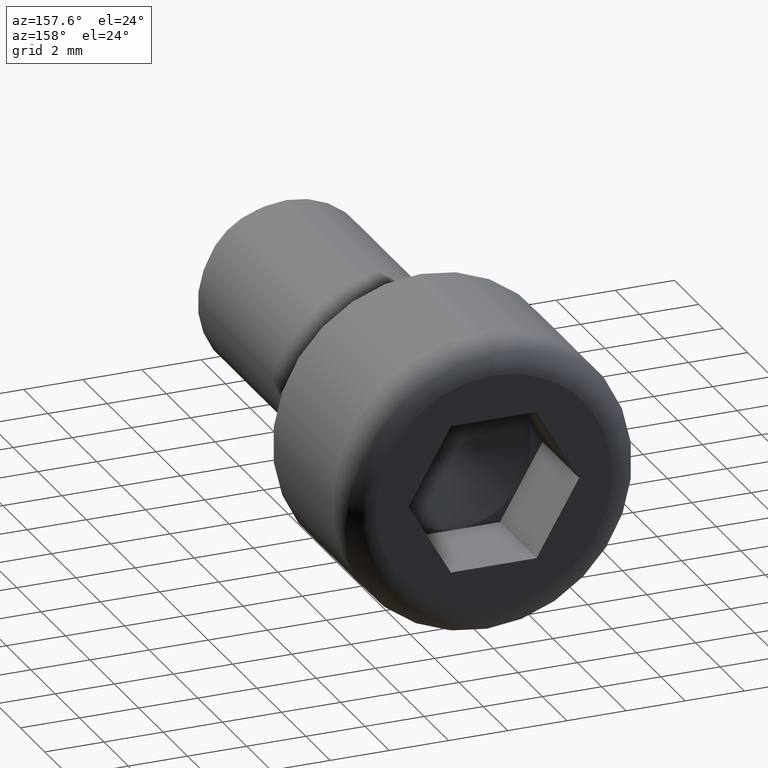
[diagram: clean part render]
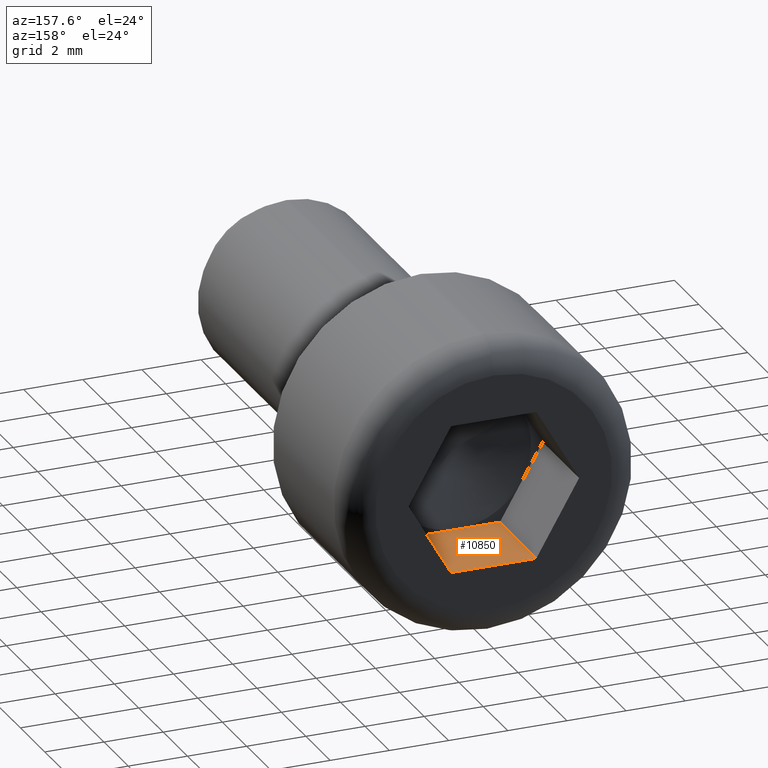
[diagram: same view with one face highlighted and labeled with its STEP entity id]
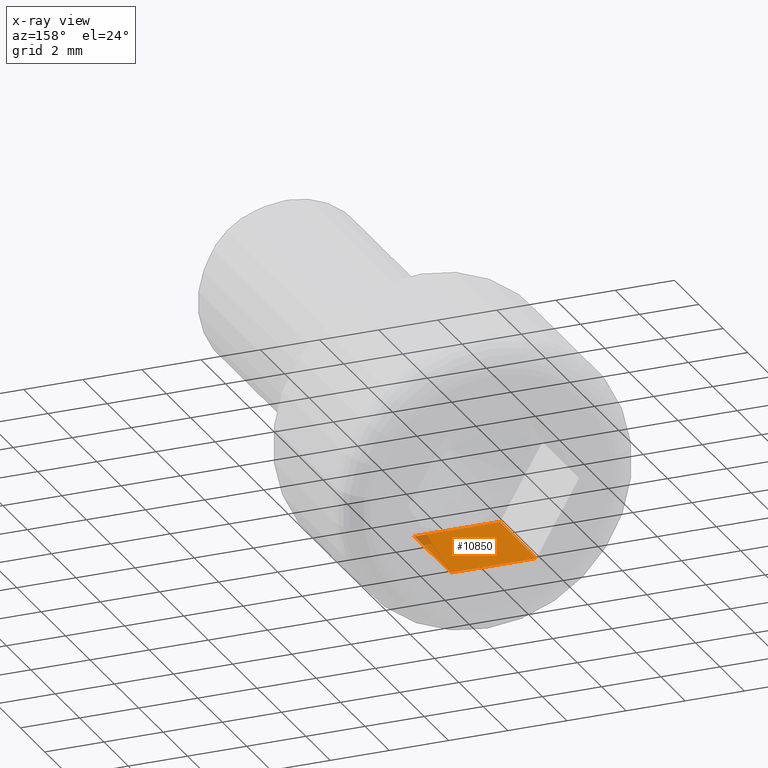
[diagram: x-ray of the same camera — body ghosted, the highlighted face saturated]
A machine part, auxiliary view. The second image highlights one B-rep face of the part: STEP entity #10850.
The next image is the same camera in x-ray: the body ghosted, the highlighted face saturated — about 3% of this face is hidden behind the body in this view.
In plain terms, the highlighted planar face has unit normal (-0, 0, -1).
Its self-contained STEP definition (entity closure, byte-faithful):
#1114 = EDGE_CURVE ( 'NONE', #8472, #5457, #16289, .T. ) ;
#1213 = DIRECTION ( 'NONE',  ( -1.000000000000000000, 0.0000000000000000000, 1.502314598737159300E-016 ) ) ;
#1711 = EDGE_CURVE ( 'NONE', #11637, #12968, #13912, .T. ) ;
#2458 = ORIENTED_EDGE ( 'NONE', *, *, #14626, .T. ) ;
#2777 = DIRECTION ( 'NONE',  ( -0.0000000000000000000, 1.000000000000000000, -0.0000000000000000000 ) ) ;
#4101 = CARTESIAN_POINT ( 'NONE',  ( 1.443375672974064300, 3.000000000000000000, -2.500000000000000400 ) ) ;
#4182 = CARTESIAN_POINT ( 'NONE',  ( 1.443375672974064300, 3.000000000000000000, -2.500000000000000400 ) ) ;
#4589 = DIRECTION ( 'NONE',  ( -1.000000000000000000, 0.0000000000000000000, 1.502314598737159300E-016 ) ) ;
#5144 = CARTESIAN_POINT ( 'NONE',  ( 1.443375672974064300, 6.000000000000000000, -2.500000000000000400 ) ) ;
#5303 = VECTOR ( 'NONE', #1213, 1000.000000000000000 ) ;
#5386 = VECTOR ( 'NONE', #4589, 1000.000000000000000 ) ;
#5457 = VERTEX_POINT ( 'NONE', #6193 ) ;
#5476 = EDGE_CURVE ( 'NONE', #5457, #12968, #9180, .T. ) ;
#6193 = CARTESIAN_POINT ( 'NONE',  ( -1.443375672974064800, 3.000000000000000000, -2.500000000000000000 ) ) ;
#6646 = VERTEX_POINT ( 'NONE', #16818 ) ;
#7089 = EDGE_CURVE ( 'NONE', #6646, #8472, #17078, .T. ) ;
#7153 = DIRECTION ( 'NONE',  ( -1.000000000000000000, 0.0000000000000000000, 1.502314598737159300E-016 ) ) ;
#7461 = DIRECTION ( 'NONE',  ( -1.000000000000000000, 0.0000000000000000000, 1.502314598737159000E-016 ) ) ;
#7518 = CARTESIAN_POINT ( 'NONE',  ( 1.443375672974064300, 3.000000000000000000, -2.500000000000000400 ) ) ;
#8049 = ORIENTED_EDGE ( 'NONE', *, *, #5476, .F. ) ;
#8472 = VERTEX_POINT ( 'NONE', #15403 ) ;
#8667 = CARTESIAN_POINT ( 'NONE',  ( 1.443375672974064300, 3.000000000000000000, -2.500000000000000400 ) ) ;
#8892 = DIRECTION ( 'NONE',  ( -1.502314598737159000E-016, 0.0000000000000000000, -1.000000000000000000 ) ) ;
#9180 = LINE ( 'NONE', #14466, #12374 ) ;
#9678 = VECTOR ( 'NONE', #2777, 1000.000000000000000 ) ;
#10364 = ORIENTED_EDGE ( 'NONE', *, *, #1711, .T. ) ;
#10412 = DIRECTION ( 'NONE',  ( -0.0000000000000000000, 1.000000000000000000, -0.0000000000000000000 ) ) ;
#10451 = ORIENTED_EDGE ( 'NONE', *, *, #7089, .F. ) ;
#10649 = ORIENTED_EDGE ( 'NONE', *, *, #1114, .F. ) ;
#10850 = ADVANCED_FACE ( 'NONE', ( #13582 ), #12955, .F. ) ;
#11637 = VERTEX_POINT ( 'NONE', #5144 ) ;
#12374 = VECTOR ( 'NONE', #10412, 1000.000000000000000 ) ;
#12541 = AXIS2_PLACEMENT_3D ( 'NONE', #7518, #8892, #7461 ) ;
#12955 = PLANE ( 'NONE',  #12541 ) ;
#12968 = VERTEX_POINT ( 'NONE', #13225 ) ;
#13225 = CARTESIAN_POINT ( 'NONE',  ( -1.443375672974064800, 6.000000000000000000, -2.500000000000000000 ) ) ;
#13582 = FACE_OUTER_BOUND ( 'NONE', #14643, .T. ) ;
#13912 = LINE ( 'NONE', #15422, #16694 ) ;
#14466 = CARTESIAN_POINT ( 'NONE',  ( -1.443375672974064800, 3.000000000000000000, -2.500000000000000000 ) ) ;
#14626 = EDGE_CURVE ( 'NONE', #6646, #11637, #16979, .T. ) ;
#14643 = EDGE_LOOP ( 'NONE', ( #10364, #8049, #10649, #10451, #2458 ) ) ;
#15403 = CARTESIAN_POINT ( 'NONE',  ( -4.108595537155047100E-016, 2.999999999999999600, -2.500000000000000000 ) ) ;
#15422 = CARTESIAN_POINT ( 'NONE',  ( 1.443375672974064300, 6.000000000000000000, -2.500000000000000400 ) ) ;
#16289 = LINE ( 'NONE', #8667, #5386 ) ;
#16694 = VECTOR ( 'NONE', #7153, 1000.000000000000000 ) ;
#16818 = CARTESIAN_POINT ( 'NONE',  ( 1.443375672974064300, 3.000000000000000000, -2.500000000000000400 ) ) ;
#16979 = LINE ( 'NONE', #4182, #9678 ) ;
#17078 = LINE ( 'NONE', #4101, #5303 ) ;